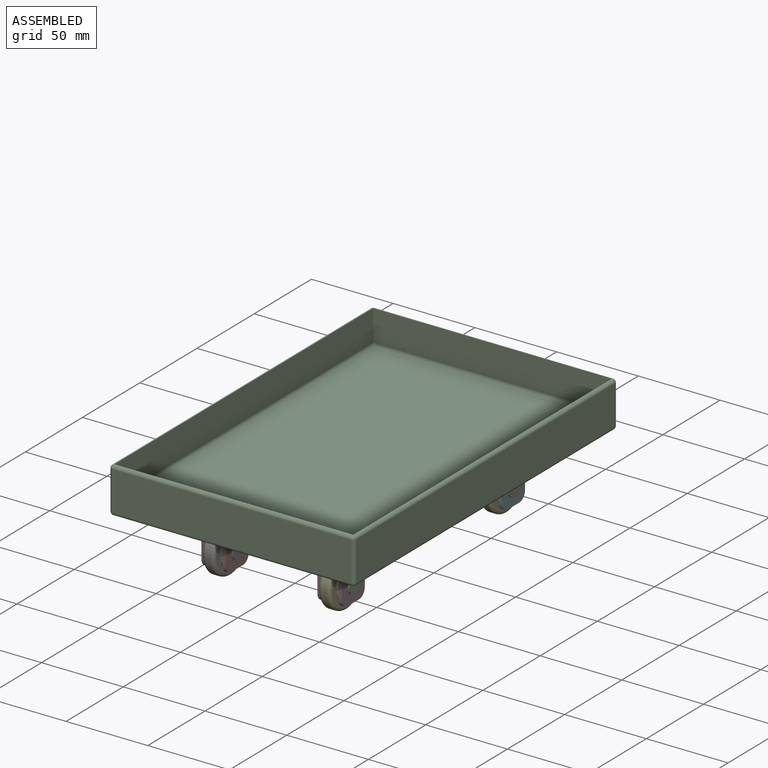
[diagram: assembled view]
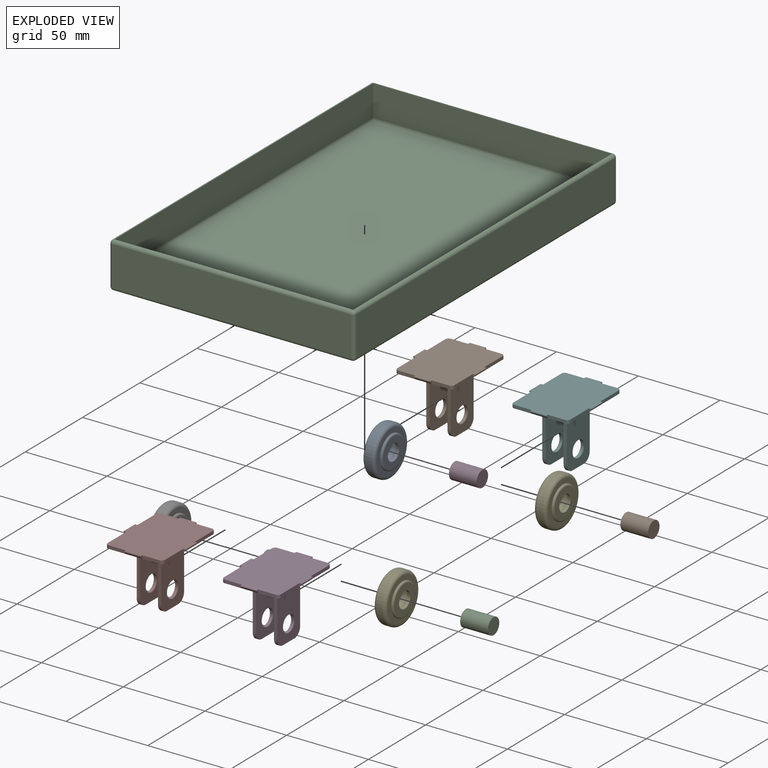
[diagram: exploded view]
GUIDED TOUR — MATED ASSEMBLY (Onshape document 33ced79bfd1c5ec7685bd7e0, AutoMate assembly 33ced79bfd1c5ec7685bd7e0_a71a9ab5b7453fb369a93028_08a0a0303eddd184614a60b7_default)

This assembly has 13 components, labeled P0..P12 below (a component is one placed occurrence of a part; the same part can appear more than once), held together by 12 mates. A mate is a constraint between two components; its type names the relative motion it leaves free:
  FASTENED — locks the two components together rigidly (no relative motion).
Axis/direction vectors are unit vectors and 'through' points are millimeter coordinates, both in the assembly's world frame.

MATES
  1. FASTENED "Fastened 1": P6 <-> P7, direction (1.000, 0.000, 0.000) through (-63.59, -84.49, -31.08) mm
  2. FASTENED "Fastened 1": P12 <-> P3, direction (1.000, 0.000, 0.000) through (7.41, -84.49, -31.08) mm
  3. FASTENED "Fastened 1": P4 <-> P5, direction (1.000, 0.000, 0.000) through (7.41, 55.51, -31.08) mm
  4. FASTENED "Fastened 5": P1 <-> P10, direction (0.000, 0.000, 1.000) through (-84.09, 76.51, -4.08) mm
  5. FASTENED "Fastened 4": P3 <-> P10, direction (0.000, 0.000, 1.000) through (17.91, -105.49, -4.08) mm
  6. FASTENED "Fastened 2": P0 <-> P7, direction (1.000, 0.000, 0.000) through (-60.09, -84.49, -31.08) mm
  7. FASTENED "Fastened 2": P11 <-> P1, direction (1.000, 0.000, 0.000) through (-60.09, 55.51, -31.08) mm
  8. FASTENED "Fastened 2": P2 <-> P3, direction (1.000, 0.000, 0.000) through (10.91, -84.49, -31.08) mm
  9. FASTENED "Fastened 2": P9 <-> P5, direction (1.000, 0.000, 0.000) through (10.91, 55.51, -31.08) mm
  10. FASTENED "Fastened 1": P8 <-> P1, direction (1.000, 0.000, 0.000) through (-63.59, 55.51, -31.08) mm
  11. FASTENED "Fastened 3": P7 <-> P10, direction (0.000, 0.000, 1.000) through (-84.09, -105.49, -4.08) mm
  12. FASTENED "Fastened 6": P5 <-> P10, direction (0.000, 0.000, 1.000) through (17.91, 76.51, -4.08) mm

ASSEMBLY ORDER
  1. P8 — the base component [order verified]
  2. P11 [order verified]
  3. P6 [order verified]
  4. P0 [order verified]
  5. P1 [order verified]
  6. P4 [order verified]
  7. P7 [order verified]
  8. P12 [order verified]
  9. P2 [order verified]
  10. P3 [order verified]
  11. P9 [order verified]
  12. P5 [order verified]
  13. P10 [order verified]
(P0, P2, P9, P10, P11 verified with a relaxed clearance tolerance: the source model stores slight part interference there.)
Order-tag legend:
  [order verified] — this step's position reverses a verified removal order: the component was checked to insert without passing through the ones already placed.

Of the 13 components, 8 carry the full construction recipe — the FeatureScript program that regenerates the part's solid from scratch; the rest are supplied as boundary geometry only.
Because this assembly has more than 12 components, the tour below covers the 12 most significant ones individually (every recipe-attached component first, then the largest by part volume), in assembly order; the remaining 1 are summarized together in a grouped section at the end.
Each toured component is shown spotlighted twice — in the assembled view, then in the exploded view, where a leader line traces a displaced component back to its assembled socket (saturated green if recipe-attached, orange if geometry-only; every other component desaturated gray) — followed by its recipe or geometry summary and the mates that hold it.
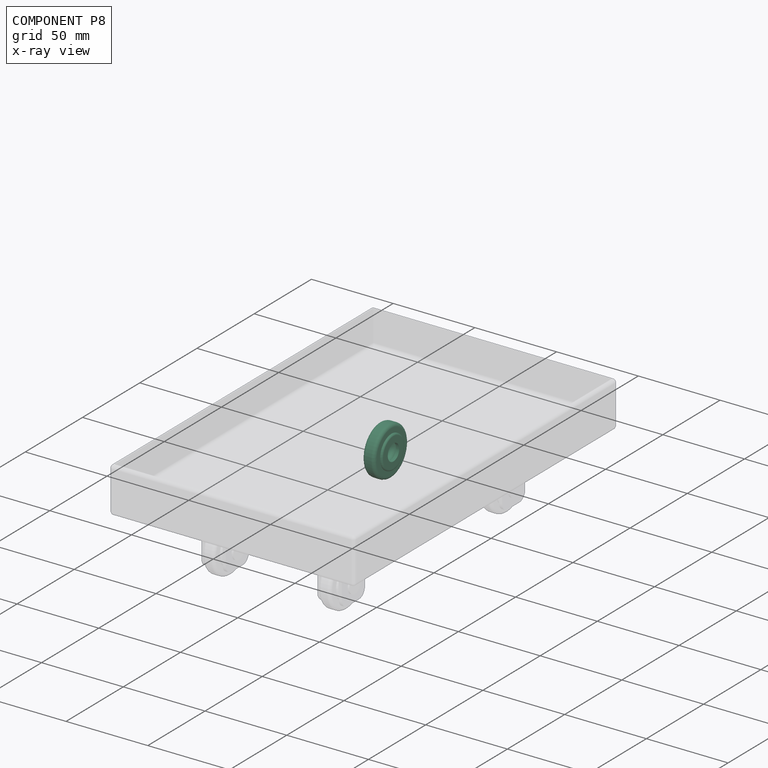
[diagram: component P8 — x-ray view]
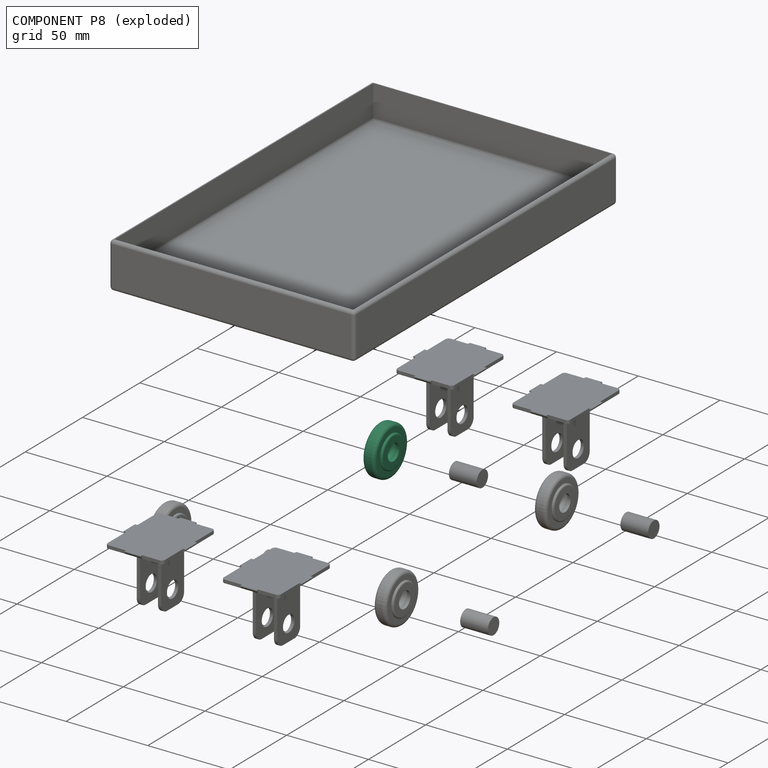
[diagram: component P8 — exploded]
COMPONENT P8 — same part as P4 (CADFS 00495493); its construction recipe is shown at P4.
Held by: FASTENED mate "Fastened 1" to P1.
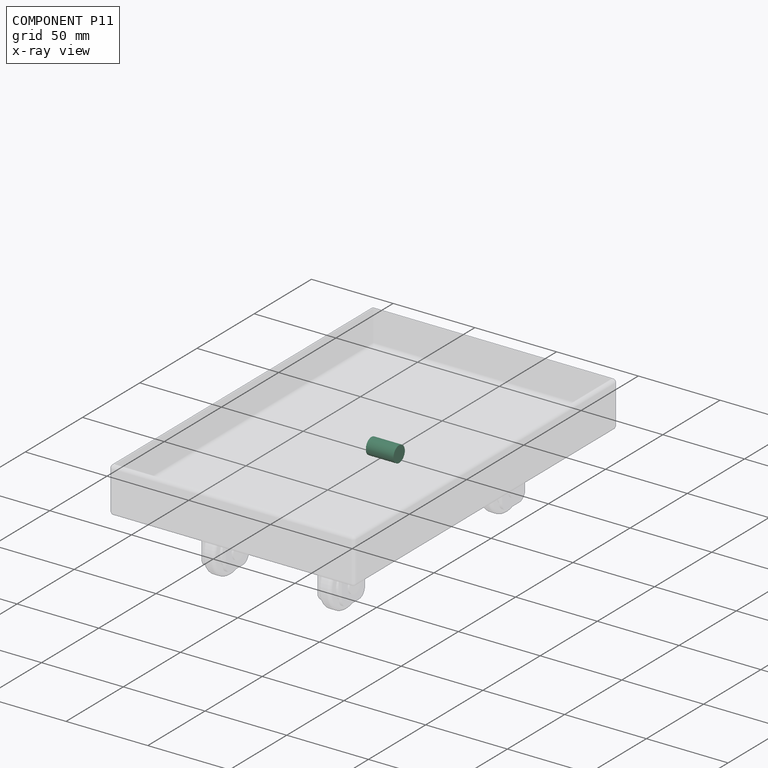
[diagram: component P11 — x-ray view]
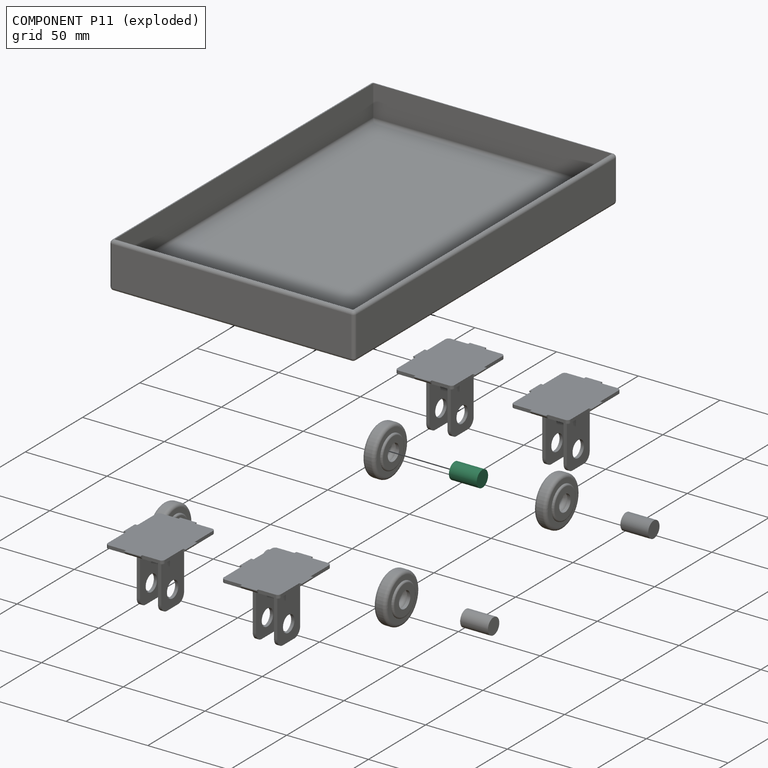
[diagram: component P11 — exploded]
COMPONENT P11 — same part as P0 (CADFS 00495495); its construction recipe is shown at P0.
Held by: FASTENED mate "Fastened 2" to P1.
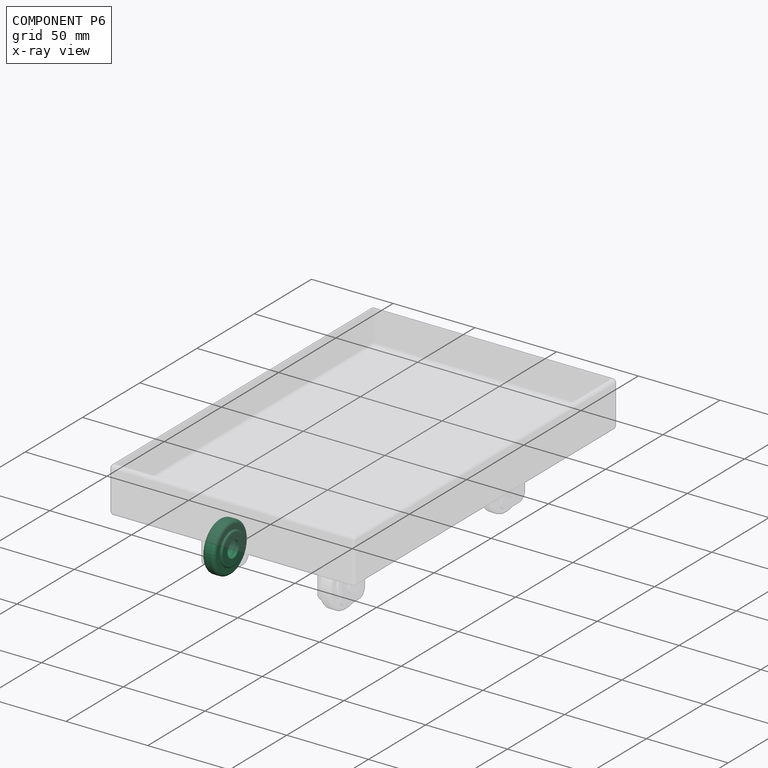
[diagram: component P6 — x-ray view]
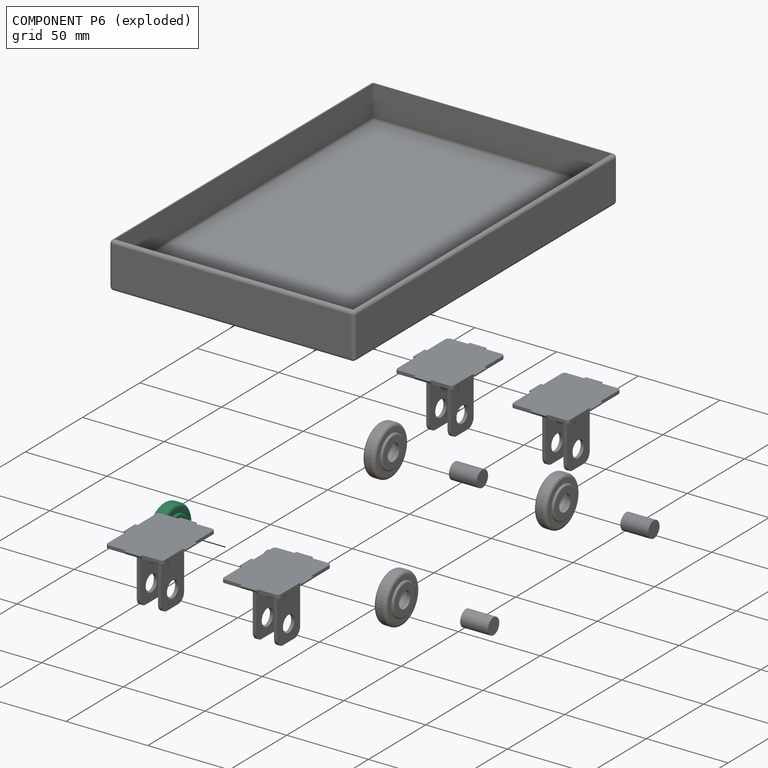
[diagram: component P6 — exploded]
COMPONENT P6 — same part as P4 (CADFS 00495493); its construction recipe is shown at P4.
Held by: FASTENED mate "Fastened 1" to P7.
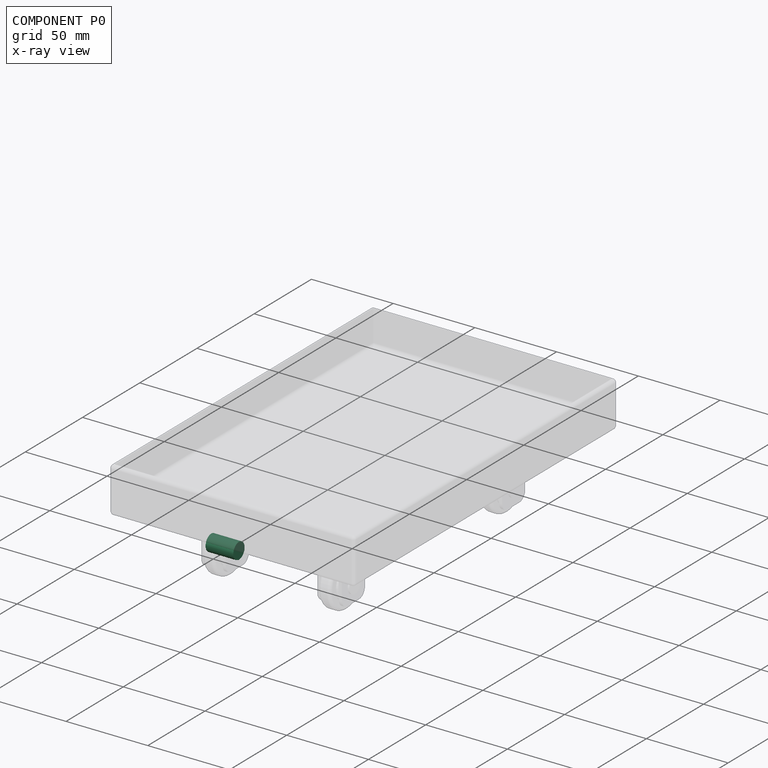
[diagram: component P0 — x-ray view]
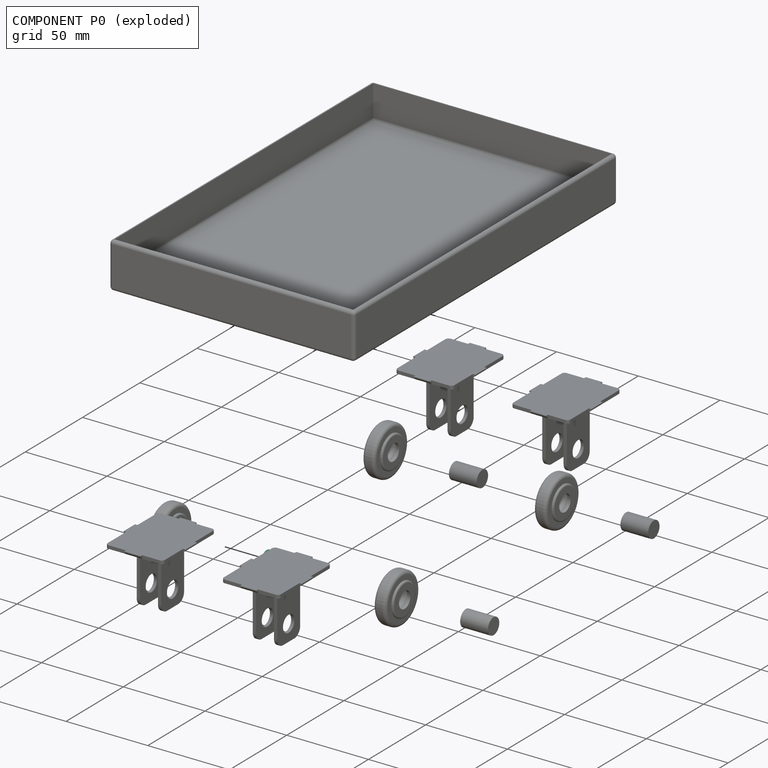
[diagram: component P0 — exploded]
COMPONENT P0 — recipe-attached (CADFS 00495495, mesh-verified: the recipe's output STEP matches this component's geometry to below the mesh-comparison resolution (tessellation chordal tolerance ~0.0331 mm)).
Held by: FASTENED mate "Fastened 2" to P7.
Construction recipe (FeatureScript — the CAD program that rebuilds this solid; sketch coordinates are in the units given by the * unit suffixes, e.g. mm):

FeatureScript 1511;
import(path : "onshape/std/geometry.fs", version : "1511.0");
import(path : "onshape/std/common.fs", version : "1511.0");
const mm = millimeter;
const VERTEX = EntityType.VERTEX;
const EDGE = EntityType.EDGE;
const FACE = EntityType.FACE;
const BODY = EntityType.BODY;
function v(x, y){return vector(x, y);}
function OD(order){return orderDisambiguation(order);}
function OSD(set){return originalSetDisambiguation(set);}
function TD(topology){return topologyDisambiguation(topology);}
function TDD(query){return trueDependencyDisambiguation(query);}
function sQuery(a, b, c) {return sketchEntityQuery(a, b, c);}

annotation { "Feature Type Name" : "Feature", "Feature Type Description" : "" }
export const myFeature = defineFeature(function(context is Context, id is Id, definition is map)
    precondition{}
    {
        {
            var Q0;
            Q0=qCreatedBy(makeId("Front.planeOp"),FACE);
            var sketch = newSketch(context, id + "F0", { "sketchPlane" : qUnion([Q0])});
            skLineSegment(sketch, "E0", {"start": v(0, 0) * mm, "end": v(0, 19.75) * mm, "construction": true});
            skLineSegment(sketch, "E1", {"start": v(0, 0) * mm, "end": v(-28.63, 0) * mm, "construction": true});
            skLineSegment(sketch, "E2.bottom", {"start": v(0, 0) * mm, "end": v(-17, 0) * mm});
            skLineSegment(sketch, "E2.top", {"start": v(0, 4.97) * mm, "end": v(-17, 4.97) * mm});
            skLineSegment(sketch, "E2.left", {"start": v(0, 0) * mm, "end": v(0, 4.97) * mm});
            skLineSegment(sketch, "E2.right", {"start": v(-17, 0) * mm, "end": v(-17, 4.97) * mm});
            skSolve(sketch);
        }
        {
            var Q0;
            Q0 = qSketchRegion(id + "F0", true);
            var Q1;
            Q1=sQuery(id+"F0.wireOp",EDGE,"E1");
            revolve(context, id + "F1", {"entities" : qUnion([Q0]), "axis" : qUnion([Q1]), "revolveType" : RevolveType.FULL});
        }
    });
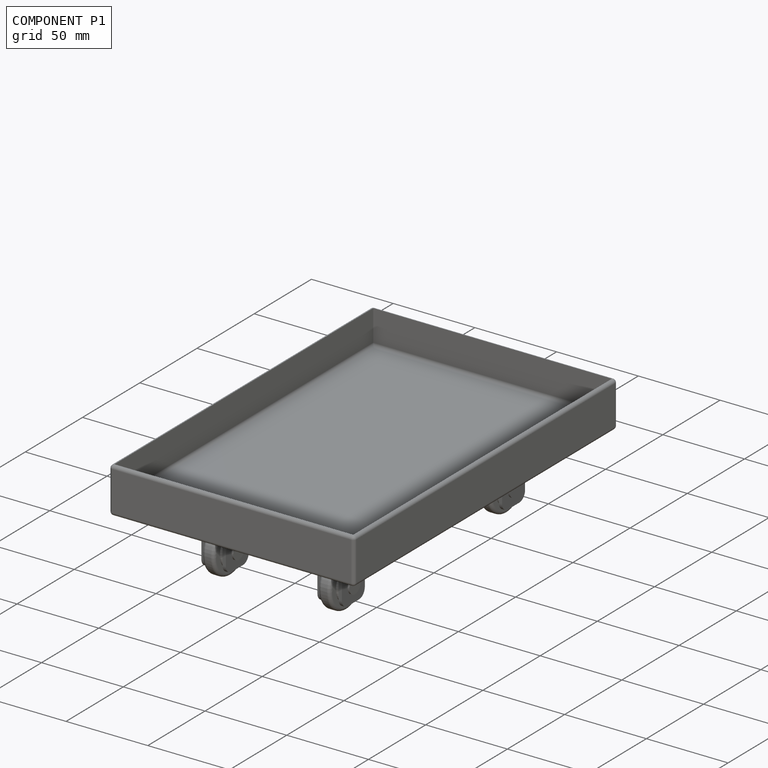
[diagram: component P1 — assembled]
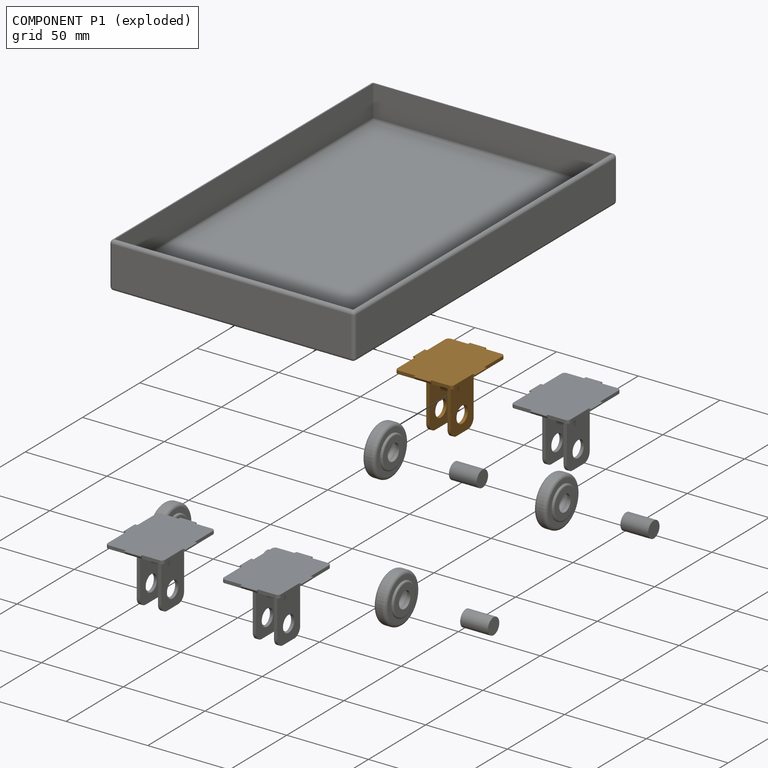
[diagram: component P1 — exploded]
COMPONENT P1 — geometry summary (no construction recipe available for this part):
  bounding box: 49.0 x 38.0 x 37.0 mm
  B-rep topology: 1 solid, 47 faces, 250 edges
  volume: 6205 mm^3 (9% of its bounding box)
  symmetry: 2-fold rotationally symmetric about the z axis; mirror-symmetric across its x mid-plane, y mid-plane
Held by: FASTENED mate "Fastened 5" to P10; FASTENED mate "Fastened 2" to P11; FASTENED mate "Fastened 1" to P8.
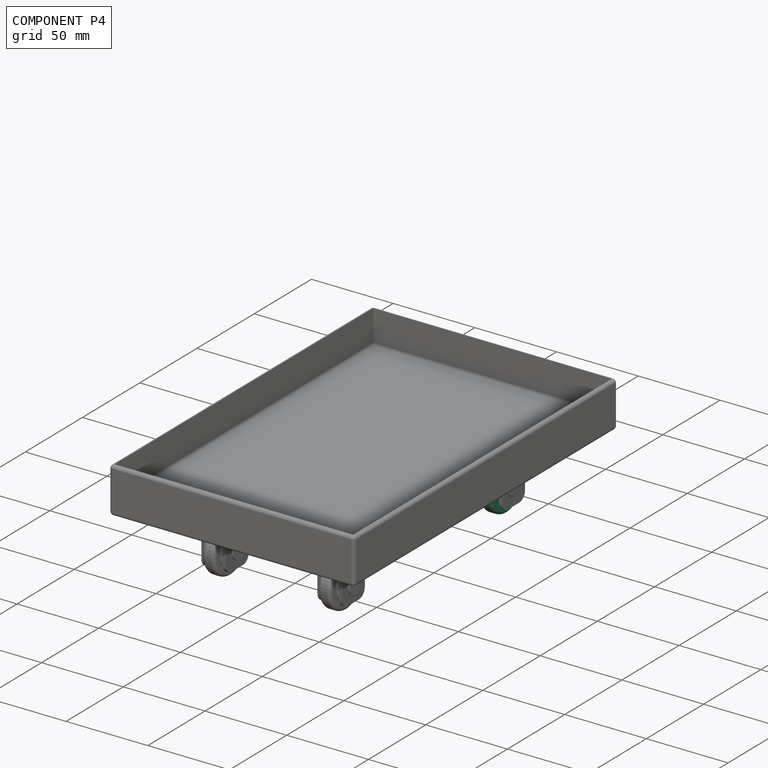
[diagram: component P4 — assembled]
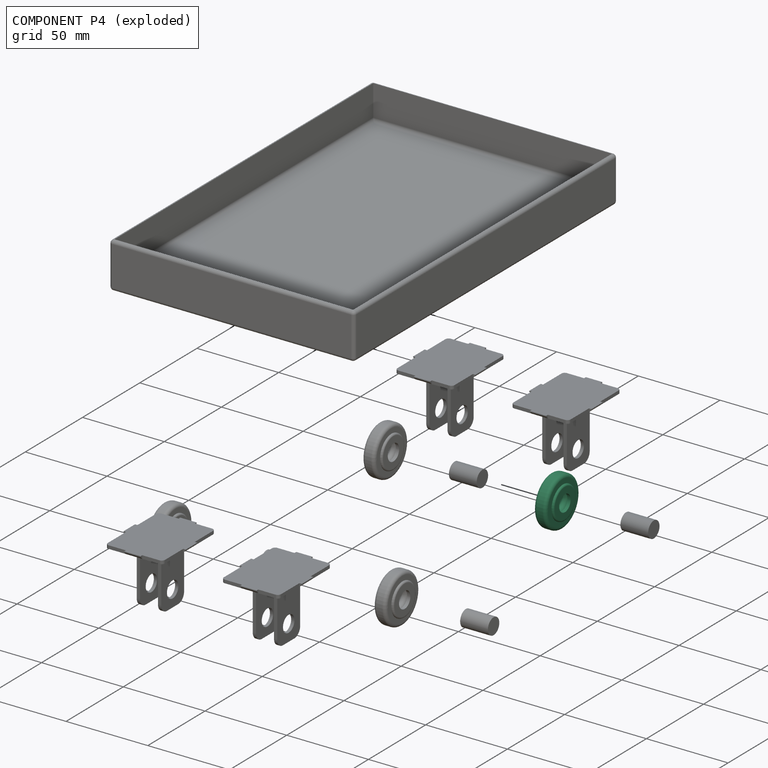
[diagram: component P4 — exploded]
COMPONENT P4 — recipe-attached (CADFS 00495493, mesh-verified: the recipe's output STEP matches this component's geometry to below the mesh-comparison resolution (tessellation chordal tolerance ~0.0654 mm)).
Held by: FASTENED mate "Fastened 1" to P5.
Construction recipe (FeatureScript — the CAD program that rebuilds this solid; sketch coordinates are in the units given by the * unit suffixes, e.g. mm):

FeatureScript 1511;
import(path : "onshape/std/geometry.fs", version : "1511.0");
import(path : "onshape/std/common.fs", version : "1511.0");
const mm = millimeter;
const VERTEX = EntityType.VERTEX;
const EDGE = EntityType.EDGE;
const FACE = EntityType.FACE;
const BODY = EntityType.BODY;
function v(x, y){return vector(x, y);}
function OD(order){return orderDisambiguation(order);}
function OSD(set){return originalSetDisambiguation(set);}
function TD(topology){return topologyDisambiguation(topology);}
function TDD(query){return trueDependencyDisambiguation(query);}
function sQuery(a, b, c) {return sketchEntityQuery(a, b, c);}

annotation { "Feature Type Name" : "Feature", "Feature Type Description" : "" }
export const myFeature = defineFeature(function(context is Context, id is Id, definition is map)
    precondition{}
    {
        {
            var Q0;
            Q0=qCreatedBy(makeId("Front.planeOp"),FACE);
            var sketch = newSketch(context, id + "F0", { "sketchPlane" : qUnion([Q0])});
            skLineSegment(sketch, "E0", {"start": v(0, 20.14) * mm, "end": v(0, 7.5) * mm, "construction": true});
            skLineSegment(sketch, "E1", {"start": v(0, 0) * mm, "end": v(-23.8, 0) * mm, "construction": true});
            skLineSegment(sketch, "E2.bottom", {"start": v(0, 0) * mm, "end": v(-3.75, 0) * mm});
            skLineSegment(sketch, "E2.top", {"start": v(0, 15) * mm, "end": v(-1.75, 15) * mm});
            skLineSegment(sketch, "E2.right", {"start": v(-3.75, 10) * mm, "end": v(-3.75, 13) * mm});
            skLineSegment(sketch, "E3", {"start": v(-3.75, 10) * mm, "end": v(-4, 10) * mm});
            skLineSegment(sketch, "E4", {"start": v(-5, 9) * mm, "end": v(-5, 5) * mm});
            skLineSegment(sketch, "E5", {"start": v(-3.75, 10) * mm, "end": v(0, 10) * mm});
            skPoint(sketch, "E5.endSnap0", {"position": v(0, 10.07) * mm});
            skPoint(sketch, "E6.visualSharp", {"position": v(-5, 10) * mm});
            skArc(sketch, "E6.filletArc", {"start": v(-4, 10) * mm, "mid": v(-4.7, 9.7) * mm, "end": v(-5, 9) * mm});
            skLineSegment(sketch, "E7", {"start": v(-5, 5) * mm, "end": v(-3, 5) * mm});
            skPoint(sketch, "E8.orphan", {"position": v(-5, 1) * mm});
            skPoint(sketch, "E9.visualSharp", {"position": v(-3.75, 15) * mm});
            skArc(sketch, "E9.filletArc", {"start": v(-1.75, 15) * mm, "mid": v(-3.16, 14.41) * mm, "end": v(-3.75, 13) * mm});
            skLineSegment(sketch, "E10.MirrorCS", {"start": v(3.75, 10) * mm, "end": v(4, 10) * mm});
            skArc(sketch, "E11.MirrorCS", {"start": v(4, 10) * mm, "mid": v(4.7, 9.7) * mm, "end": v(5, 9) * mm});
            skLineSegment(sketch, "E12.MirrorCS", {"start": v(0, 15) * mm, "end": v(1.75, 15) * mm});
            skPoint(sketch, "E13.MirrorP", {"position": v(5, 10) * mm});
            skPoint(sketch, "E14.MirrorP", {"position": v(3.75, 15) * mm});
            skLineSegment(sketch, "E15.MirrorCS", {"start": v(3.75, 10) * mm, "end": v(3.75, 13) * mm});
            skArc(sketch, "E16.MirrorCS", {"start": v(1.75, 15) * mm, "mid": v(3.16, 14.41) * mm, "end": v(3.75, 13) * mm});
            skLineSegment(sketch, "E17.MirrorCS", {"start": v(5, 5) * mm, "end": v(3, 5) * mm});
            skLineSegment(sketch, "E18.MirrorCS", {"start": v(3.75, 10) * mm, "end": v(0, 10) * mm});
            skLineSegment(sketch, "E19.MirrorCS", {"start": v(5, 9) * mm, "end": v(5, 5) * mm});
            skLineSegment(sketch, "E20.top", {"start": v(-3, 7.5) * mm, "end": v(-2.5, 7.5) * mm});
            skLineSegment(sketch, "E20.left", {"start": v(-3, 5) * mm, "end": v(-3, 7.5) * mm});
            skLineSegment(sketch, "E21.trimOffspring", {"start": v(0, 5) * mm, "end": v(0, 0) * mm, "construction": true});
            skPoint(sketch, "E22.orphan", {"position": v(-1, 5) * mm});
            skLineSegment(sketch, "E23.MirrorCS", {"start": v(3, 7.5) * mm, "end": v(2.5, 7.5) * mm});
            skLineSegment(sketch, "E24.MirrorCS", {"start": v(3, 5) * mm, "end": v(3, 7.5) * mm});
            skPoint(sketch, "E25.orphan", {"position": v(1, 5) * mm});
            skCircle(sketch, "E26", {"center": v(0, 7.5) * mm, "radius": 2.5 * mm});
            skSolve(sketch);
        }
        {
            var Q0;
            Q0=makeQuery(id+"F0.imprint","IMPRINT",FACE,{"disambiguationData":[TD([[makeQuery(id+"F0.imprint","IMPRINT",EDGE,{"derivedFrom":sQuery(id+"F0.wireOp",EDGE,"E2.top")}),1.0]])]});
            var Q1;
            Q1=makeQuery(id+"F0.imprint","IMPRINT",FACE,{"disambiguationData":[TD([[makeQuery(id+"F0.imprint","IMPRINT",EDGE,{"derivedFrom":sQuery(id+"F0.wireOp",EDGE,"E3")}),1.0]])]});
            var Q2;
            {var subQ0=sQuery(id+"F0.wireOp",EDGE,"E26");var subQ3=makeQuery(id+"F0.imprint","INTERSECT",VERTEX,{"derivedFrom":[sQuery(id+"F0.wireOp",EDGE,"E20.top"),subQ0]});Q2=makeQuery(id+"F0.imprint","IMPRINT",FACE,{"disambiguationData":[TD([[makeQuery(id+"F0.imprint","IMPRINT",EDGE,{"disambiguationData":[TD([[subQ3,-1.0]])],"derivedFrom":subQ0}),1.0]])]});}
            var Q3;
            Q3=makeQuery(id+"F0.imprint","IMPRINT",FACE,{"disambiguationData":[TD([[makeQuery(id+"F0.imprint","IMPRINT",EDGE,{"derivedFrom":sQuery(id+"F0.wireOp",EDGE,"E10.MirrorCS")}),-1.0]])]});
            var Q4;
            Q4=sQuery(id+"F0.wireOp",EDGE,"E1");
            revolve(context, id + "F1", {"entities" : qUnion([Q0, Q1, Q2, Q3]), "axis" : qUnion([Q4]), "revolveType" : RevolveType.FULL});
        }
    });
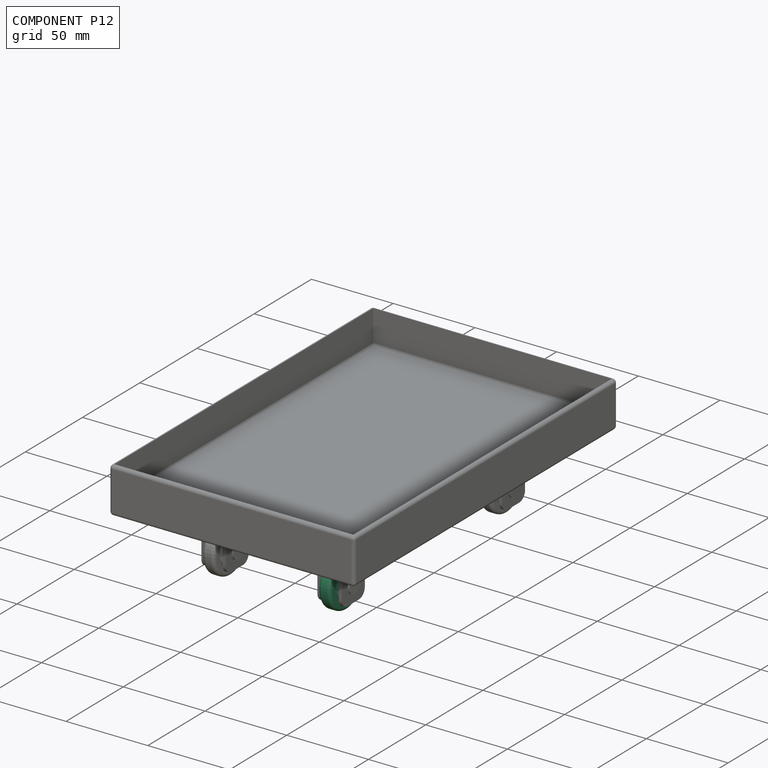
[diagram: component P12 — assembled]
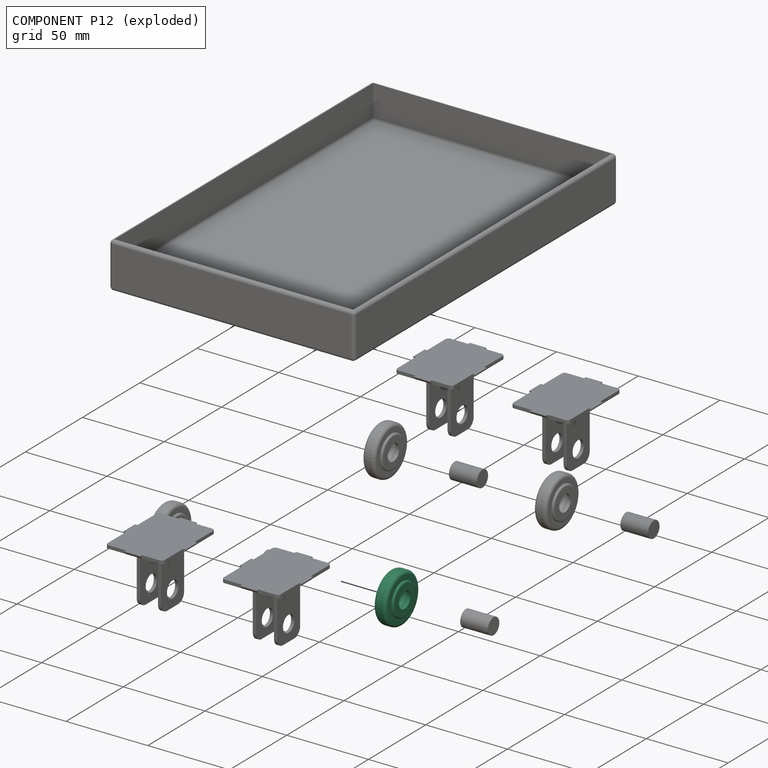
[diagram: component P12 — exploded]
COMPONENT P12 — same part as P4 (CADFS 00495493); its construction recipe is shown at P4.
Held by: FASTENED mate "Fastened 1" to P3.
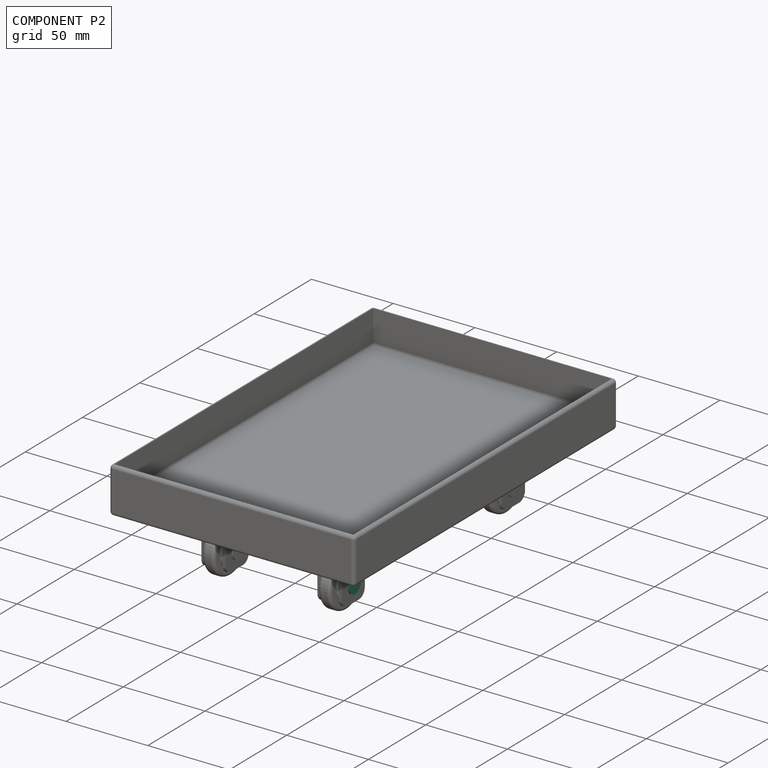
[diagram: component P2 — assembled]
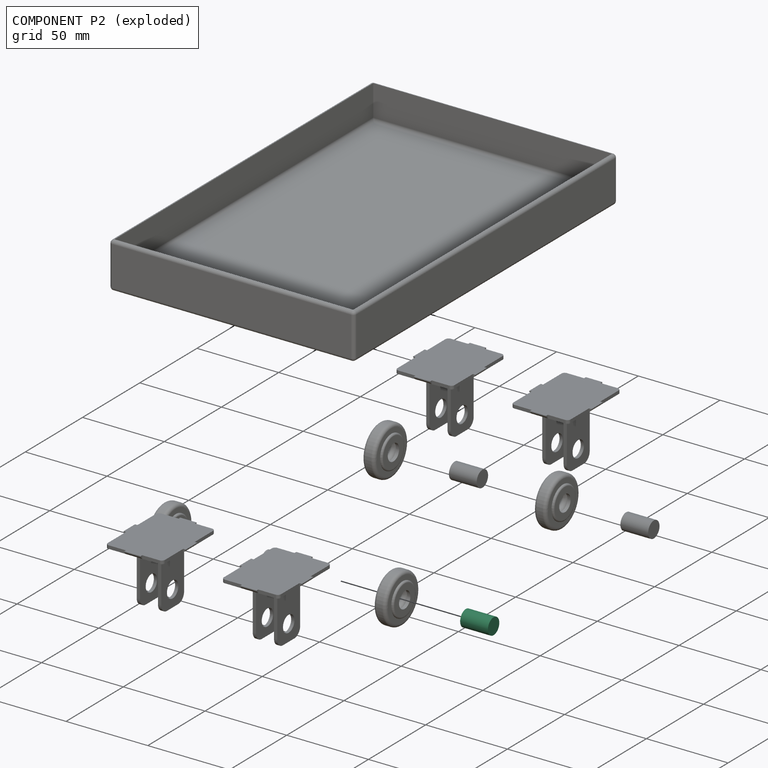
[diagram: component P2 — exploded]
COMPONENT P2 — same part as P0 (CADFS 00495495); its construction recipe is shown at P0.
Held by: FASTENED mate "Fastened 2" to P3.
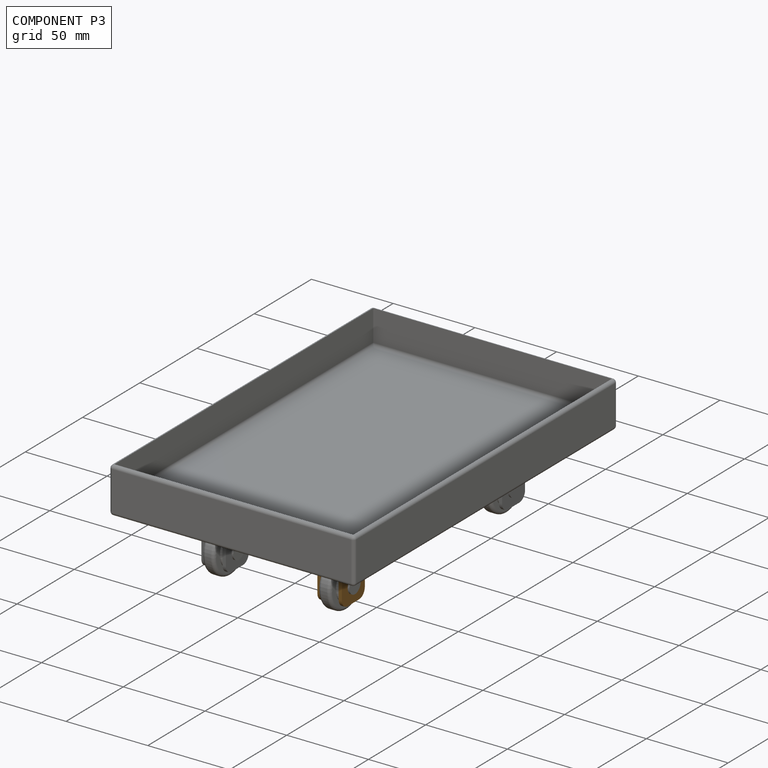
[diagram: component P3 — assembled]
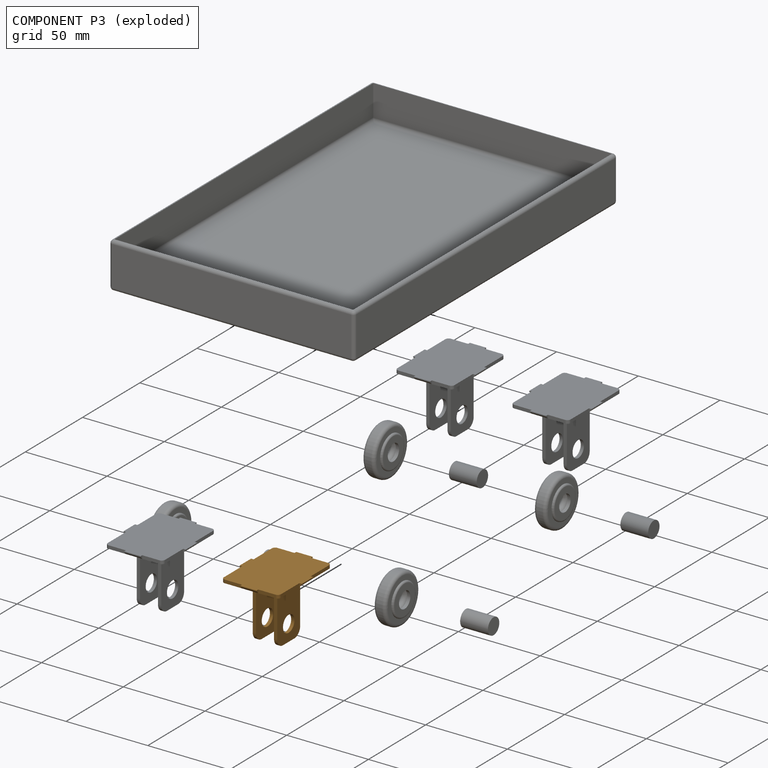
[diagram: component P3 — exploded]
COMPONENT P3 — geometry summary (no construction recipe available for this part):
  bounding box: 49.0 x 38.0 x 37.0 mm
  B-rep topology: 1 solid, 47 faces, 250 edges
  volume: 6205 mm^3 (9% of its bounding box)
  symmetry: 2-fold rotationally symmetric about the z axis; mirror-symmetric across its x mid-plane, y mid-plane
Held by: FASTENED mate "Fastened 1" to P12; FASTENED mate "Fastened 4" to P10; FASTENED mate "Fastened 2" to P2.
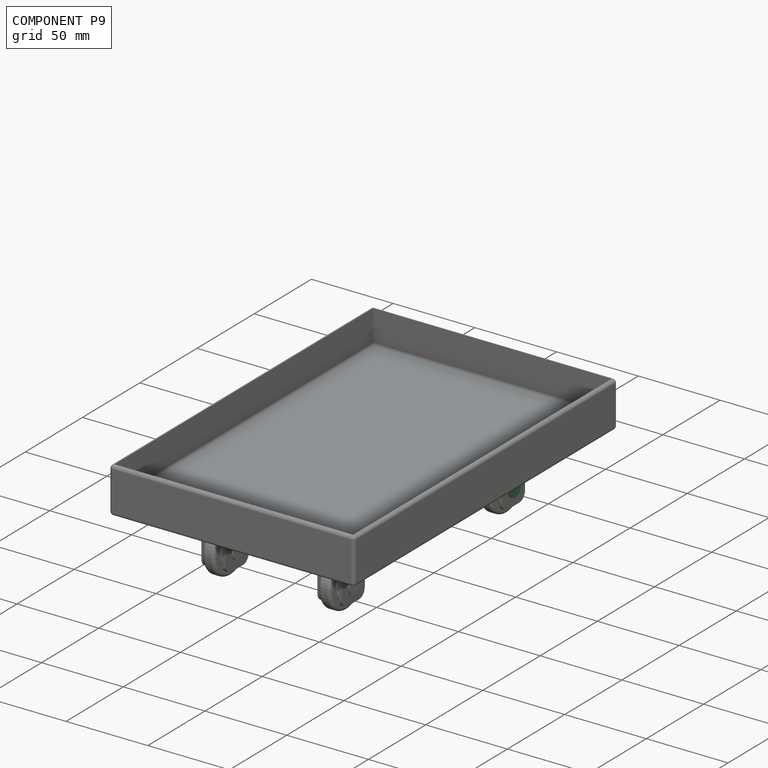
[diagram: component P9 — assembled]
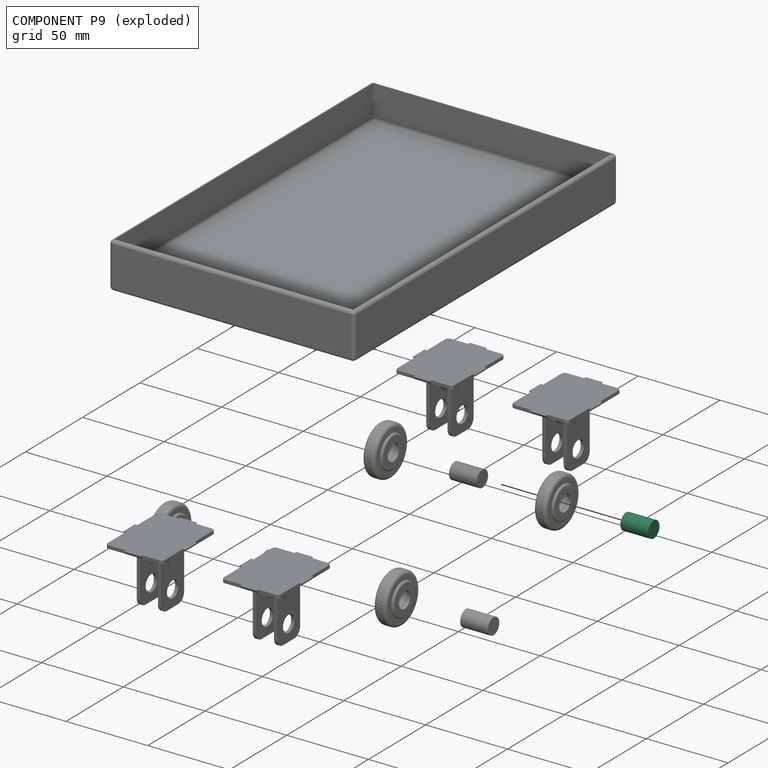
[diagram: component P9 — exploded]
COMPONENT P9 — same part as P0 (CADFS 00495495); its construction recipe is shown at P0.
Held by: FASTENED mate "Fastened 2" to P5.
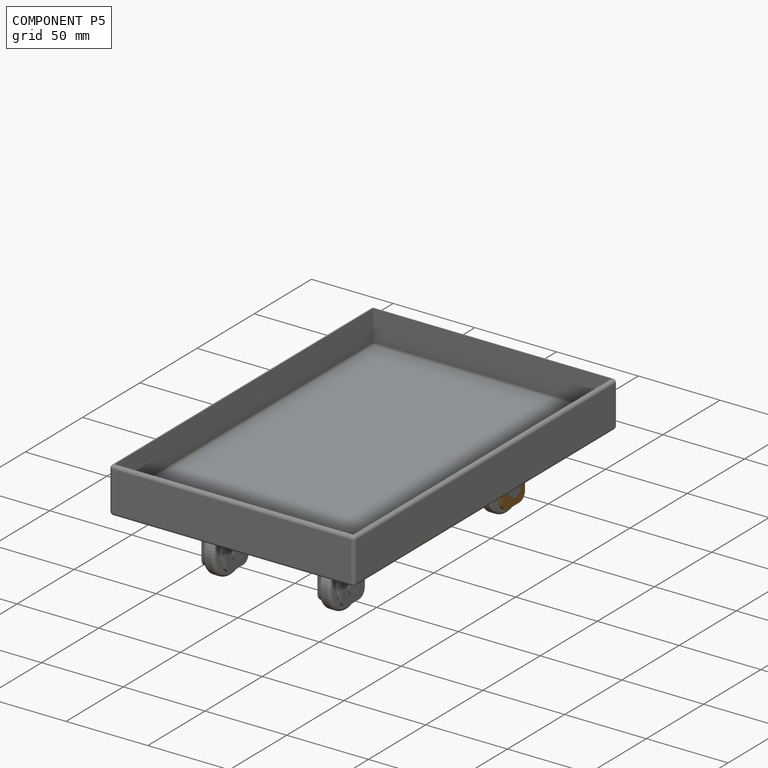
[diagram: component P5 — assembled]
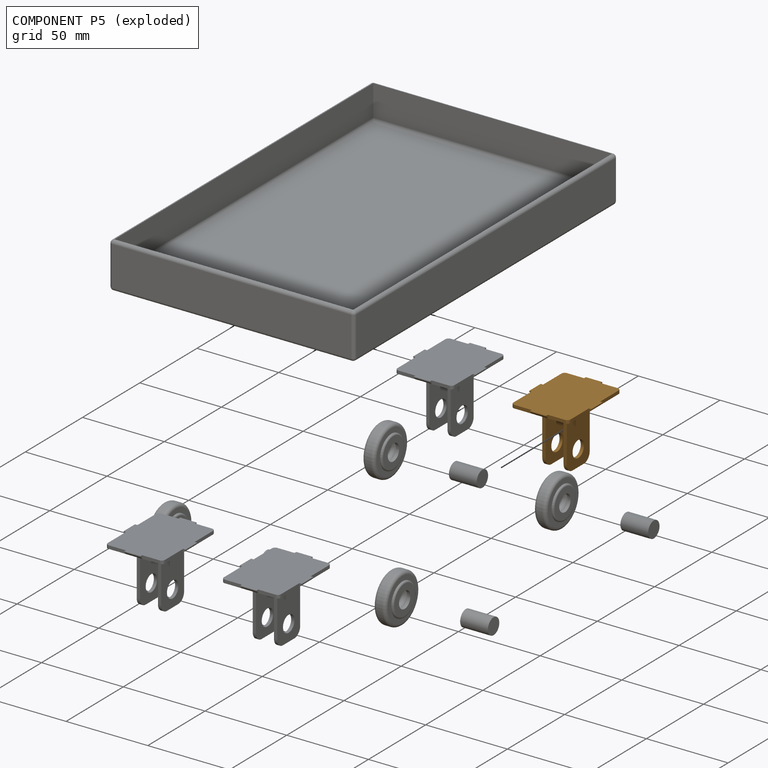
[diagram: component P5 — exploded]
COMPONENT P5 — geometry summary (no construction recipe available for this part):
  bounding box: 49.0 x 38.0 x 37.0 mm
  B-rep topology: 1 solid, 47 faces, 250 edges
  volume: 6205 mm^3 (9% of its bounding box)
  symmetry: 2-fold rotationally symmetric about the z axis; mirror-symmetric across its x mid-plane, y mid-plane
Held by: FASTENED mate "Fastened 1" to P4; FASTENED mate "Fastened 2" to P9; FASTENED mate "Fastened 6" to P10.
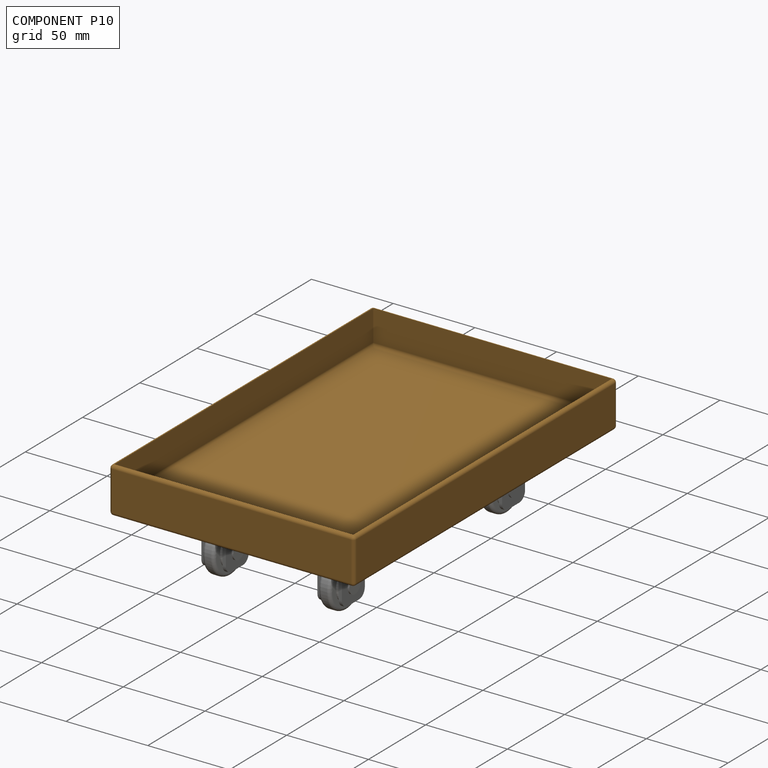
[diagram: component P10 — assembled]
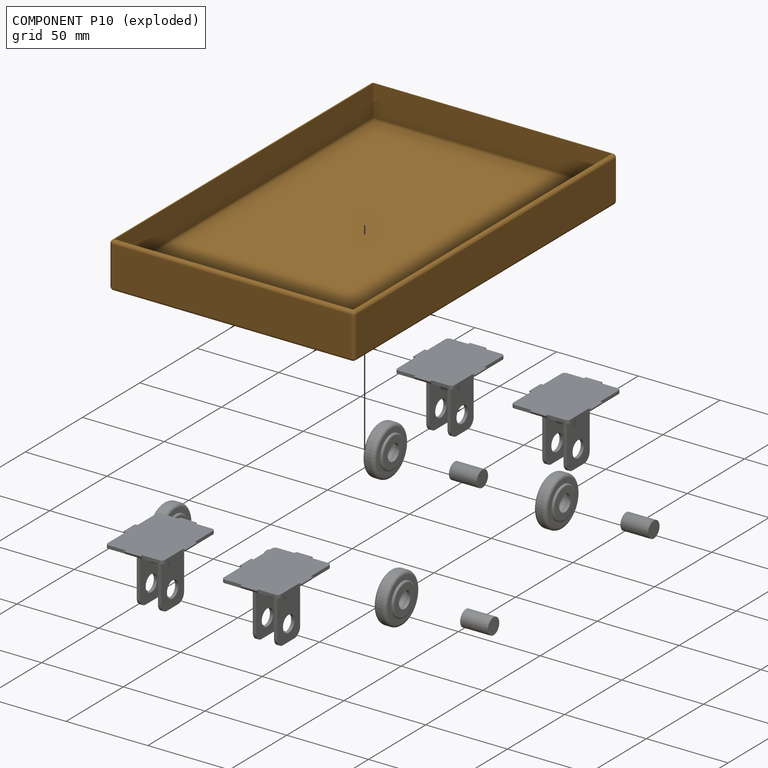
[diagram: component P10 — exploded]
COMPONENT P10 — geometry summary (no construction recipe available for this part):
  bounding box: 230.0 x 150.0 x 28.0 mm
  B-rep topology: 1 solid, 43 faces, 176 edges
  volume: 209111 mm^3 (22% of its bounding box)
  symmetry: 2-fold rotationally symmetric about the z axis; mirror-symmetric across its x mid-plane, y mid-plane
Held by: FASTENED mate "Fastened 5" to P1; FASTENED mate "Fastened 4" to P3; FASTENED mate "Fastened 3" to P7; FASTENED mate "Fastened 6" to P5.
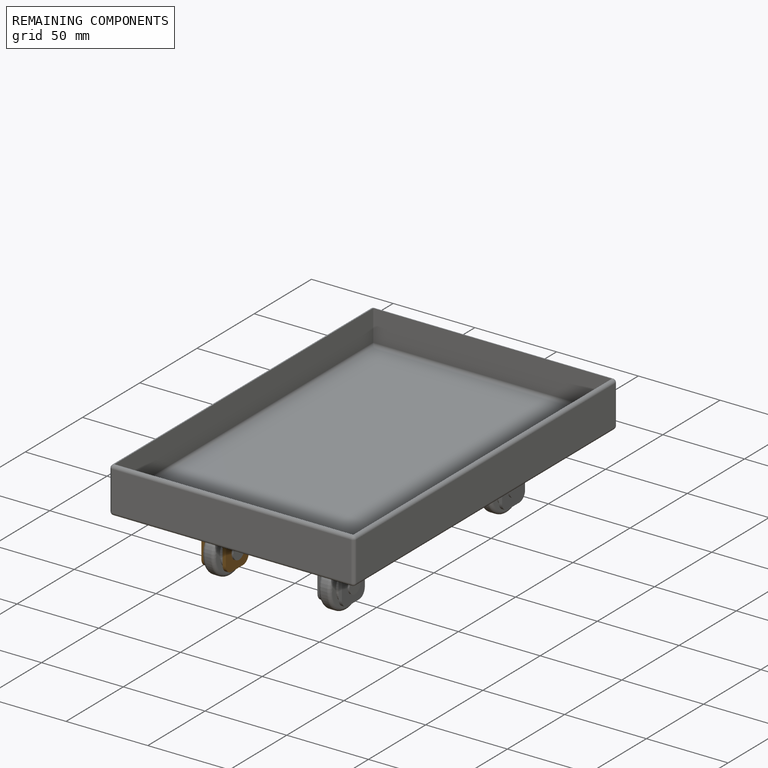
[diagram: remaining components — assembled]
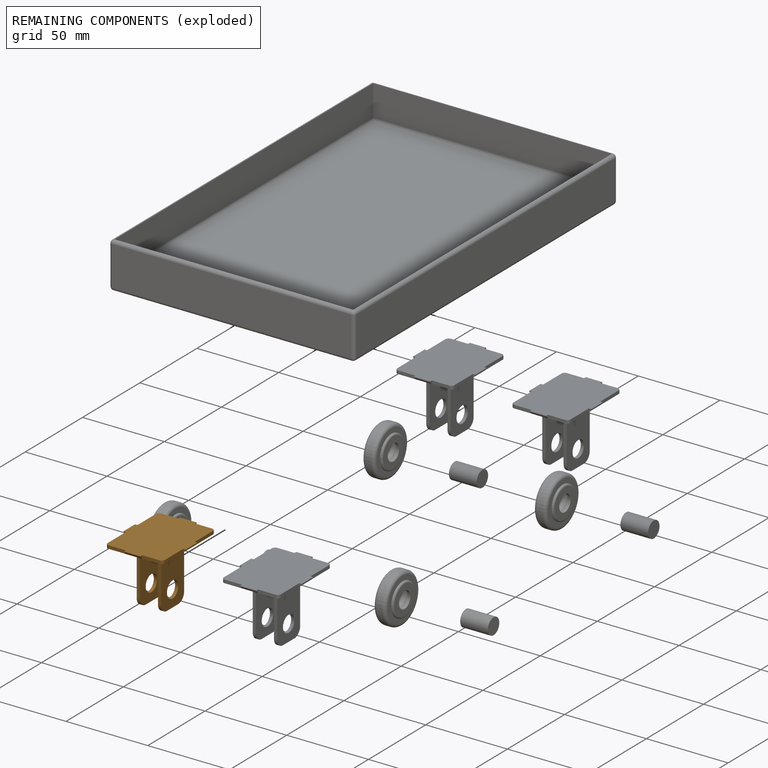
[diagram: remaining components — exploded]
REMAINING COMPONENTS (grouped) — the 1 components below fall outside the per-component tour by the significance rule stated above; both spotlight views highlight the whole group.
  P7: bounding box 49.0 x 38.0 x 37.0 mm, volume 6205 mm^3. Held by: FASTENED mate "Fastened 1" to P6; FASTENED mate "Fastened 2" to P0; FASTENED mate "Fastened 3" to P10.
PROVENANCE & LICENSES
Assembly (occurrences, transforms, mates, per-part STEP geometry): AutoMate dataset, Zenodo record 7776208, CC0.
Construction recipes: CADFS (HuggingFace VladPyatov/CADFS, CC-BY-4.0, layered over the ABC dataset), FeatureScript reconstruction programs keyed by ABC model id.
Join: ABC meta listings map ABC model id -> Onshape documentId; within a shared document, parts are matched by geometric signature (bounding-box dims + volume at 0.1% relative tolerance, exact B-rep face/solid counts).
Verification: 8 of this assembly's 13 components carry a recipe attachment, and every attachment is mesh-verified: the CADFS STEP and the AutoMate member STEP were compared as meshes in their shared local frame (symmetric sampled-point-to-mesh distance); worst across the 8 attachments: below the mesh-comparison resolution (tessellation chordal tolerance ~0.0654 mm) on a 44 mm part.
Renders: orthographic iso camera (az 35 / el 25); the floor grid conveys scale (grid pitch printed in each image; no ruler). In the exploded view each component is displaced by its stored offset vector: the offsets alone carry the explosion direction (mate normal/axis signs are not orientation cues and do not encode it), and separation distances are assigned per mate-chain, not proportionally to assembly-order depth.
